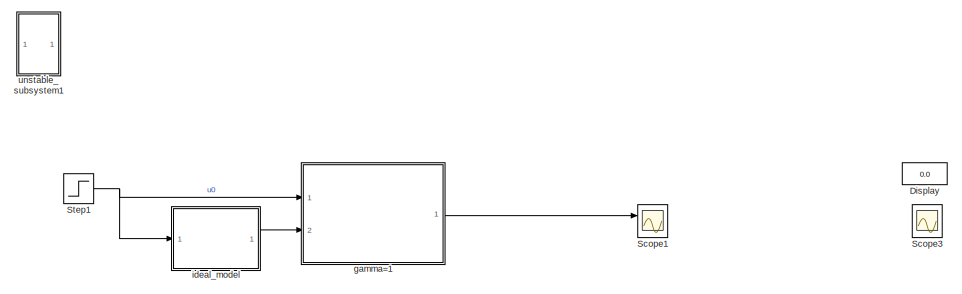
[diagram: root canvas - part 1/2, top left region]
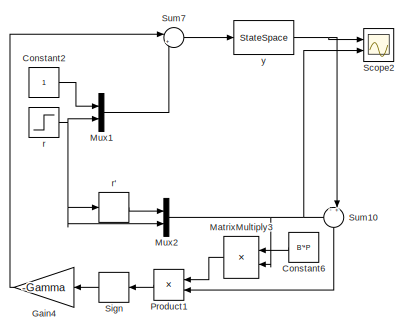
[diagram: root canvas - part 2/2, bottom right region]
MODEL slx_180a5251db2b
KIND model
CONFIG AbsTol = auto
CONFIG EnableMultiTasking = off
CONFIG FixedStep = auto
CONFIG MaxStep = 1e-2
CONFIG MinStep = auto
CONFIG RelTol = 1e-3
CONFIG SampleTimeConstraint = Unconstrained
CONFIG SolverName = VariableStepAuto
CONFIG StartTime = 0.0
CONFIG StopTime = 0.2
BLOCK [Constant] Constant2
BLOCK [Constant] Constant6
  NameLocation = top
  Value = B'*P
  VectorParams1D = off
BLOCK [Display] Display
  Commented = on
  Decimation = 2
  Ports = [1]
BLOCK [Gain] Gain4
  Gain = -Gamma
  NameLocation = top
BLOCK [Product] MatrixMultiply3
  Multiplication = Matrix(*)
  NameLocation = top
  Ports = [2, 1]
BLOCK [Mux] Mux1
  DisplayOption = bar
  Inputs = 2
  Ports = [2, 1]
BLOCK [Mux] Mux2
  DisplayOption = bar
  Inputs = 2
  Ports = [2, 1]
BLOCK [Product] Product1
  NameLocation = top
  Ports = [2, 1]
BLOCK [Scope] Scope1
  Commented = on
  Floating = off
  NumInputPorts = 2
  Ports = [2]
  ScopeSpecificationString = Simulink.scopes.TimeScopeBlockCfg('CurrentConfiguration', extmgr.ConfigurationSet(extmgr.Configuration('Core','General UI',true,'FigureColor',[1 1 1]),extmgr.Configuration('Core','Source UI',true),extmgr.Configuration('Sources','WiredSimulink',true,'DataLoggingVariableName','ScopeData1'),extmgr.Configuration('Visuals','Time Domain',true,'SerializedDisplays',{struct('MinYLimReal','-0.24245','MaxYLi...<+1633ch>
BLOCK [Scope] Scope2
  Floating = off
  NumInputPorts = 2
  Ports = [2]
  ScopeSpecificationString = Simulink.scopes.TimeScopeBlockCfg('CurrentConfiguration', extmgr.ConfigurationSet(extmgr.Configuration('Core','General UI',true,'FigureColor',[1 1 1]),extmgr.Configuration('Core','Source UI',true),extmgr.Configuration('Sources','WiredSimulink',true,'DataLoggingVariableName','ScopeData1'),extmgr.Configuration('Visuals','Time Domain',true,'SerializedDisplays',{struct('MinYLimReal','-0.49342','MaxYLi...<+1871ch>
BLOCK [Scope] Scope3
  Commented = on
  Floating = off
  NumInputPorts = 2
  Ports = [2]
  ScopeSpecificationString = Simulink.scopes.TimeScopeBlockCfg('CurrentConfiguration', extmgr.ConfigurationSet(extmgr.Configuration('Core','General UI',true,'FigureColor',[1 1 1]),extmgr.Configuration('Core','Source UI',true),extmgr.Configuration('Sources','WiredSimulink',true,'DataLoggingVariableName','ScopeData1'),extmgr.Configuration('Visuals','Time Domain',true,'SerializedDisplays',{struct('MinYLimReal','-2.42455','MaxYLi...<+1621ch>
BLOCK [Signum] Sign
  NameLocation = top
BLOCK [Step] Step1
  Commented = on
  SampleTime = 0
  Time = 0
BLOCK [Sum] Sum10
  Inputs = -+|
  NameLocation = right
  Ports = [2, 1]
BLOCK [Sum] Sum7
  Inputs = |++
  Ports = [2, 1]
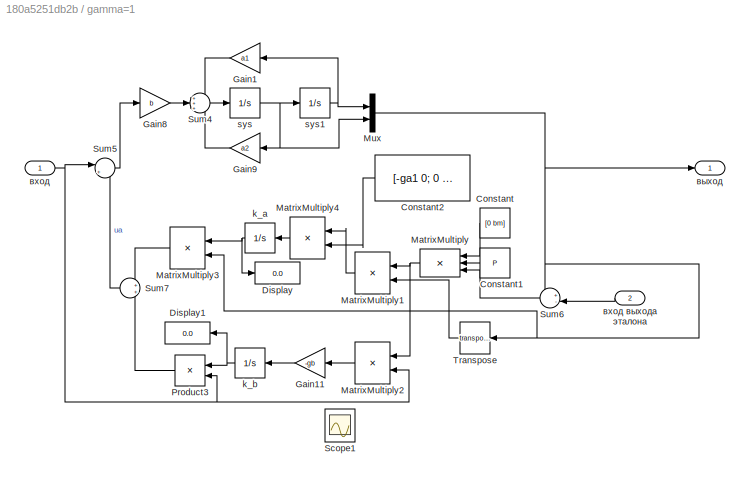
BLOCK [SubSystem] gamma=1
  Commented = on
  Ports = [2, 1]
  RequestExecContextInheritance = off
BLOCK [Constant] gamma=1/Constant
  NameLocation = top
  Value = [0 bm]
BLOCK [Constant] gamma=1/Constant1
  NameLocation = top
  Value = P
BLOCK [Constant] gamma=1/Constant2
  NameLocation = top
  Value = [-ga1 0; 0 -ga2]
BLOCK [Display] gamma=1/Display
  Decimation = 2
  Ports = [1]
BLOCK [Display] gamma=1/Display1
  Decimation = 2
  NameLocation = top
  Ports = [1]
BLOCK [Gain] gamma=1/Gain1
  Gain = a1
  NameLocation = top
BLOCK [Gain] gamma=1/Gain11
  Gain = -gb
  NameLocation = top
BLOCK [Gain] gamma=1/Gain8
  Gain = b
BLOCK [Gain] gamma=1/Gain9
  Gain = a2
  NameLocation = top
BLOCK [Product] gamma=1/MatrixMultiply
  Inputs = 3
  Multiplication = Matrix(*)
  NameLocation = top
  Ports = [3, 1]
BLOCK [Product] gamma=1/MatrixMultiply1
  Multiplication = Matrix(*)
  NameLocation = top
  Ports = [2, 1]
BLOCK [Product] gamma=1/MatrixMultiply2
  Multiplication = Matrix(*)
  NameLocation = top
  Ports = [2, 1]
BLOCK [Product] gamma=1/MatrixMultiply3
  Multiplication = Matrix(*)
  NameLocation = top
  Ports = [2, 1]
BLOCK [Product] gamma=1/MatrixMultiply4
  Multiplication = Matrix(*)
  NameLocation = top
  Ports = [2, 1]
BLOCK [Mux] gamma=1/Mux
  DisplayOption = bar
  Inputs = 2
  Ports = [2, 1]
BLOCK [Product] gamma=1/Product3
  NameLocation = top
  Ports = [2, 1]
BLOCK [Scope] gamma=1/Scope1
  Floating = off
  NumInputPorts = 2
  Ports = [2]
  ScopeSpecificationString = Simulink.scopes.TimeScopeBlockCfg('CurrentConfiguration', extmgr.ConfigurationSet(extmgr.Configuration('Core','General UI',true,'FigureColor',[1 1 1]),extmgr.Configuration('Core','Source UI',true),extmgr.Configuration('Sources','WiredSimulink',true,'DataLoggingVariableName','ScopeData1'),extmgr.Configuration('Visuals','Time Domain',true,'SerializedDisplays',{struct('MinYLimReal','-2.42455','MaxYLi...<+1621ch>
BLOCK [Sum] gamma=1/Sum4
  Inputs = +++
  Ports = [3, 1]
BLOCK [Sum] gamma=1/Sum5
  Inputs = |++
  Ports = [2, 1]
BLOCK [Sum] gamma=1/Sum6
  Inputs = +-|
  NameLocation = top
  Ports = [2, 1]
BLOCK [Sum] gamma=1/Sum7
  NameLocation = top
  Ports = [2, 1]
BLOCK [Math] gamma=1/Transpose
  NameLocation = top
  Operator = transpose
  Ports = [1, 1]
BLOCK [Integrator] gamma=1/k_a
  NameLocation = top
  Ports = [1, 1]
BLOCK [Integrator] gamma=1/k_b
  NameLocation = top
  Ports = [1, 1]
BLOCK [Integrator] gamma=1/sys
  Ports = [1, 1]
BLOCK [Integrator] gamma=1/sys1
  Ports = [1, 1]
BLOCK [Inport] gamma=1/вход
BLOCK [Inport] gamma=1/вход выхода эталона
  Port = 2
BLOCK [Outport] gamma=1/выход
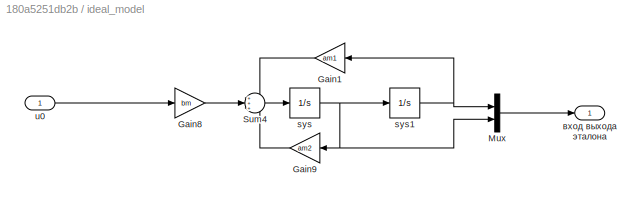
BLOCK [SubSystem] ideal_model
  Commented = on
  Ports = [1, 1]
  RequestExecContextInheritance = off
BLOCK [Gain] ideal_model/Gain1
  Gain = am1
  NameLocation = top
BLOCK [Gain] ideal_model/Gain8
  Gain = bm
BLOCK [Gain] ideal_model/Gain9
  Gain = am2
  NameLocation = top
BLOCK [Mux] ideal_model/Mux
  DisplayOption = bar
  Inputs = 2
  Ports = [2, 1]
BLOCK [Sum] ideal_model/Sum4
  Inputs = +++
  Ports = [3, 1]
BLOCK [Integrator] ideal_model/sys
  Ports = [1, 1]
BLOCK [Integrator] ideal_model/sys1
  Ports = [1, 1]
BLOCK [Inport] ideal_model/u0
BLOCK [Outport] ideal_model/вход выхода эталона
BLOCK [Step] r
  SampleTime = 0
  Time = 0.05
BLOCK [Derivative] r'
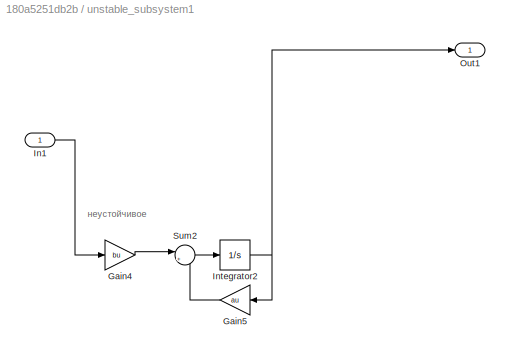
BLOCK [SubSystem] unstable_subsystem1
  Commented = on
  Ports = [1, 1]
  RequestExecContextInheritance = off
BLOCK [Gain] unstable_subsystem1/Gain4
  Commented = on
  Gain = bu
BLOCK [Gain] unstable_subsystem1/Gain5
  Commented = on
  Gain = au
  NameLocation = top
BLOCK [Inport] unstable_subsystem1/In1
BLOCK [Integrator] unstable_subsystem1/Integrator2
  Commented = on
  Ports = [1, 1]
BLOCK [Outport] unstable_subsystem1/Out1
BLOCK [Sum] unstable_subsystem1/Sum2
  Commented = on
  Inputs = |++
  Ports = [2, 1]
BLOCK [StateSpace] y
  A = A
  B = B
  C = C
  D = zeros(2)
  InitialCondition = 0
  Ports = [1, 1]
ANNOTATION unstable_subsystem1: неустойчивое
LINE Constant2:1 -> Mux1:1
LINE Constant6:1 -> MatrixMultiply3:1
LINE Gain4:1 -> Sum7:1
LINE MatrixMultiply3:1 -> Product1:1
LINE Mux1:1 -> Sum7:2
NET Mux2:1 -> MatrixMultiply3:2, Scope2:2, Sum10:1
LINE Product1:1 -> Sign:1
LINE Sign:1 -> Gain4:1
NET Step1:1 -> gamma=1:1, ideal_model:1
LINE Sum10:1 -> Product1:2
LINE Sum7:1 -> y:1
LINE gamma=1/Constant1:1 -> gamma=1/MatrixMultiply:2
LINE gamma=1/Constant2:1 -> gamma=1/MatrixMultiply4:2
LINE gamma=1/Constant:1 -> gamma=1/MatrixMultiply:1
LINE gamma=1/Gain11:1 -> gamma=1/k_b:1
LINE gamma=1/Gain1:1 -> gamma=1/Sum4:1
LINE gamma=1/Gain8:1 -> gamma=1/Sum4:2
LINE gamma=1/Gain9:1 -> gamma=1/Sum4:3
LINE gamma=1/MatrixMultiply1:1 -> gamma=1/MatrixMultiply4:1
LINE gamma=1/MatrixMultiply2:1 -> gamma=1/Gain11:1
LINE gamma=1/MatrixMultiply3:1 -> gamma=1/Sum7:1
LINE gamma=1/MatrixMultiply4:1 -> gamma=1/k_a:1
NET gamma=1/MatrixMultiply:1 -> gamma=1/MatrixMultiply1:1, gamma=1/MatrixMultiply2:1
NET gamma=1/Mux:1 -> gamma=1/MatrixMultiply3:2, gamma=1/Sum6:1, gamma=1/Transpose:1, gamma=1/выход:1
LINE gamma=1/Product3:1 -> gamma=1/Sum7:2
LINE gamma=1/Sum4:1 -> gamma=1/sys:1
LINE gamma=1/Sum5:1 -> gamma=1/Gain8:1
LINE gamma=1/Sum6:1 -> gamma=1/MatrixMultiply:3
LINE gamma=1/Sum7:1 -> gamma=1/Sum5:2
LINE gamma=1/Transpose:1 -> gamma=1/MatrixMultiply1:2
NET gamma=1/k_a:1 -> gamma=1/Display:1, gamma=1/MatrixMultiply3:1
NET gamma=1/k_b:1 -> gamma=1/Display1:1, gamma=1/Product3:1
NET gamma=1/sys1:1 -> gamma=1/Gain1:1, gamma=1/Mux:1
NET gamma=1/sys:1 -> gamma=1/Gain9:1, gamma=1/Mux:2, gamma=1/sys1:1
LINE gamma=1/вход выхода эталона:1 -> gamma=1/Sum6:2
NET gamma=1/вход:1 -> gamma=1/MatrixMultiply2:2, gamma=1/Product3:2, gamma=1/Sum5:1
LINE gamma=1:1 -> Scope1:1
LINE ideal_model/Gain1:1 -> ideal_model/Sum4:1
LINE ideal_model/Gain8:1 -> ideal_model/Sum4:2
LINE ideal_model/Gain9:1 -> ideal_model/Sum4:3
LINE ideal_model/Mux:1 -> ideal_model/вход выхода эталона:1
LINE ideal_model/Sum4:1 -> ideal_model/sys:1
NET ideal_model/sys1:1 -> ideal_model/Gain1:1, ideal_model/Mux:1
NET ideal_model/sys:1 -> ideal_model/Gain9:1, ideal_model/Mux:2, ideal_model/sys1:1
LINE ideal_model/u0:1 -> ideal_model/Gain8:1
LINE ideal_model:1 -> gamma=1:2
LINE r':1 -> Mux2:1
NET r:1 -> Mux1:2, Mux2:2, r':1
LINE unstable_subsystem1/Gain4:1 -> unstable_subsystem1/Sum2:1
LINE unstable_subsystem1/Gain5:1 -> unstable_subsystem1/Sum2:2
LINE unstable_subsystem1/In1:1 -> unstable_subsystem1/Gain4:1
NET unstable_subsystem1/Integrator2:1 -> unstable_subsystem1/Gain5:1, unstable_subsystem1/Out1:1
LINE unstable_subsystem1/Sum2:1 -> unstable_subsystem1/Integrator2:1
NET y:1 -> Scope2:1, Sum10:2
note: NET lines group one-source signal fan-out (src -> all destinations, sorted); 1:1 wires keep LINE
